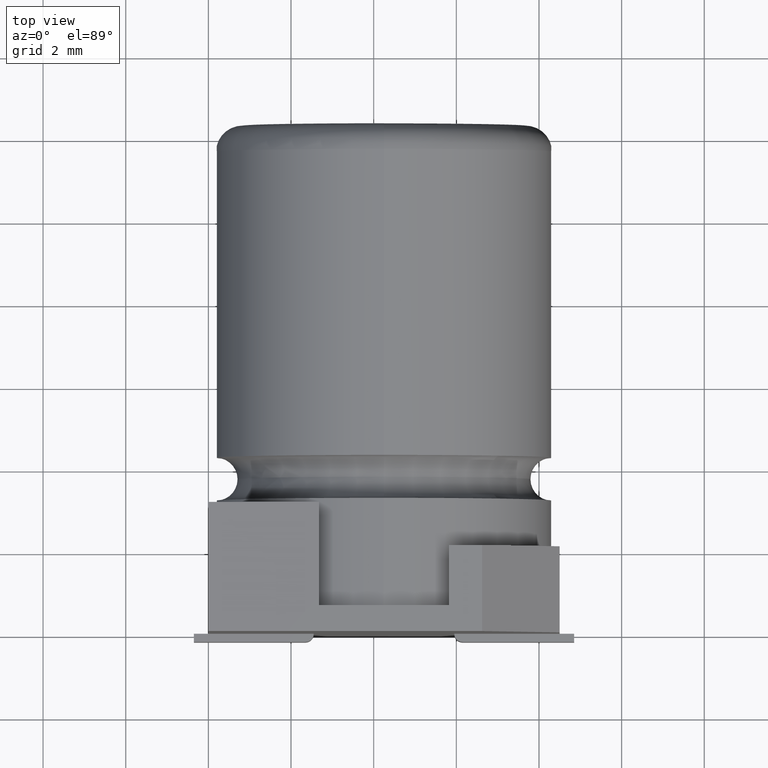
[diagram: clean part render]
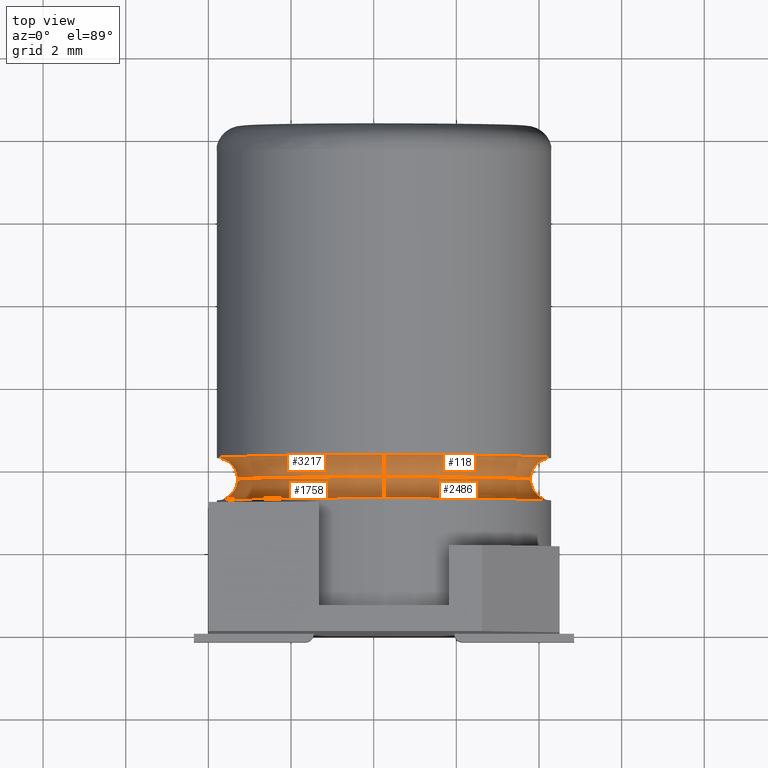
[diagram: same view with one multi-face feature highlighted, each face labeled with its STEP entity id]
A machine part, top view. The highlighted faces form ONE feature: a constant-radius fillet chain: 4 tangent blend faces with common blend radius 0.5187 mm. The faces share edges in the B-rep.
Their STEP definitions:
[1] entity #2486 (Torus):
#206 = AXIS2_PLACEMENT_3D ( 'NONE', #2729, #2178, #1648 ) ;
#469 = CARTESIAN_POINT ( 'NONE',  ( 4.250000000000000000, 3.228750000000000675, -8.312575000000000713 ) ) ;
#475 = CIRCLE ( 'NONE', #2372, 4.062574999999998937 ) ;
#484 = DIRECTION ( 'NONE',  ( 0.000000000000000000, 0.000000000000000000, -1.000000000000000000 ) ) ;
#539 = CARTESIAN_POINT ( 'NONE',  ( 4.250000000000000888, 3.747500000000000053, -0.7061750000000031058 ) ) ;
#631 = AXIS2_PLACEMENT_3D ( 'NONE', #1432, #2741, #3356 ) ;
#808 = AXIS2_PLACEMENT_3D ( 'NONE', #2545, #1240, #3126 ) ;
#934 = ORIENTED_EDGE ( 'NONE', *, *, #1233, .T. ) ;
#941 = ORIENTED_EDGE ( 'NONE', *, *, #1557, .F. ) ;
#963 = CARTESIAN_POINT ( 'NONE',  ( 4.250000000000000000, 3.747500000000000053, -7.793825000000000891 ) ) ;
#1031 = CARTESIAN_POINT ( 'NONE',  ( 4.250000000000000888, 3.228750000000000675, -0.1874250000000032279 ) ) ;
#1080 = TOROIDAL_SURFACE ( 'NONE', #206, 4.062574999999998937, 0.5187499999999999334 ) ;
#1232 = CARTESIAN_POINT ( 'NONE',  ( 4.250000000000000000, 3.228750000000000675, -4.250000000000001776 ) ) ;
#1233 = EDGE_CURVE ( 'NONE', #2688, #3080, #2653, .T. ) ;
#1237 = DIRECTION ( 'NONE',  ( 0.000000000000000000, 0.000000000000000000, 1.000000000000000000 ) ) ;
#1240 = DIRECTION ( 'NONE',  ( 1.000000000000000000, 0.000000000000000000, -1.224646799147353207E-16 ) ) ;
#1256 = VERTEX_POINT ( 'NONE', #1031 ) ;
#1298 = CIRCLE ( 'NONE', #808, 0.5187499999999999334 ) ;
#1432 = CARTESIAN_POINT ( 'NONE',  ( 4.250000000000000000, 3.747500000000000053, -4.250000000000001776 ) ) ;
#1502 = AXIS2_PLACEMENT_3D ( 'NONE', #2019, #2036, #1237 ) ;
#1536 = DIRECTION ( 'NONE',  ( -0.000000000000000000, -1.000000000000000000, -0.000000000000000000 ) ) ;
#1557 = EDGE_CURVE ( 'NONE', #2688, #1256, #475, .T. ) ;
#1648 = DIRECTION ( 'NONE',  ( 0.000000000000000000, 0.000000000000000000, -1.000000000000000000 ) ) ;
#1815 = EDGE_CURVE ( 'NONE', #3080, #3172, #1984, .T. ) ;
#1984 = CIRCLE ( 'NONE', #631, 3.543824999999998671 ) ;
#2019 = CARTESIAN_POINT ( 'NONE',  ( 4.250000000000000000, 3.747500000000000053, -8.312575000000000713 ) ) ;
#2036 = DIRECTION ( 'NONE',  ( -1.000000000000000000, 0.000000000000000000, 0.000000000000000000 ) ) ;
#2123 = ORIENTED_EDGE ( 'NONE', *, *, #3210, .F. ) ;
#2178 = DIRECTION ( 'NONE',  ( -0.000000000000000000, -1.000000000000000000, -0.000000000000000000 ) ) ;
#2372 = AXIS2_PLACEMENT_3D ( 'NONE', #1232, #1536, #484 ) ;
#2420 = ORIENTED_EDGE ( 'NONE', *, *, #1815, .T. ) ;
#2486 = ADVANCED_FACE ( 'NONE', ( #3103 ), #1080, .F. ) ;
#2545 = CARTESIAN_POINT ( 'NONE',  ( 4.250000000000000888, 3.747500000000000053, -0.1874250000000032279 ) ) ;
#2653 = CIRCLE ( 'NONE', #1502, 0.5187500000000001554 ) ;
#2688 = VERTEX_POINT ( 'NONE', #469 ) ;
#2729 = CARTESIAN_POINT ( 'NONE',  ( 4.250000000000000000, 3.747500000000000053, -4.250000000000001776 ) ) ;
#2741 = DIRECTION ( 'NONE',  ( -0.000000000000000000, -1.000000000000000000, -0.000000000000000000 ) ) ;
#3080 = VERTEX_POINT ( 'NONE', #963 ) ;
#3103 = FACE_OUTER_BOUND ( 'NONE', #3141, .T. ) ;
#3126 = DIRECTION ( 'NONE',  ( 0.000000000000000000, 0.000000000000000000, -1.000000000000000000 ) ) ;
#3141 = EDGE_LOOP ( 'NONE', ( #934, #2420, #2123, #941 ) ) ;
#3172 = VERTEX_POINT ( 'NONE', #539 ) ;
#3210 = EDGE_CURVE ( 'NONE', #1256, #3172, #1298, .T. ) ;
#3356 = DIRECTION ( 'NONE',  ( 0.000000000000000000, 0.000000000000000000, -1.000000000000000000 ) ) ;
[2] entity #118 (Torus):
#118 = ADVANCED_FACE ( 'NONE', ( #2147 ), #1644, .F. ) ;
#322 = DIRECTION ( 'NONE',  ( -0.000000000000000000, -1.000000000000000000, -0.000000000000000000 ) ) ;
#480 = CIRCLE ( 'NONE', #2612, 4.062574999999998937 ) ;
#539 = CARTESIAN_POINT ( 'NONE',  ( 4.250000000000000888, 3.747500000000000053, -0.7061750000000031058 ) ) ;
#631 = AXIS2_PLACEMENT_3D ( 'NONE', #1432, #2741, #3356 ) ;
#926 = DIRECTION ( 'NONE',  ( -1.000000000000000000, 0.000000000000000000, 0.000000000000000000 ) ) ;
#963 = CARTESIAN_POINT ( 'NONE',  ( 4.250000000000000000, 3.747500000000000053, -7.793825000000000891 ) ) ;
#1087 = EDGE_CURVE ( 'NONE', #3172, #2908, #1115, .T. ) ;
#1115 = CIRCLE ( 'NONE', #2421, 0.5187499999999999334 ) ;
#1238 = ORIENTED_EDGE ( 'NONE', *, *, #3115, .T. ) ;
#1354 = DIRECTION ( 'NONE',  ( 0.000000000000000000, 0.000000000000000000, -1.000000000000000000 ) ) ;
#1383 = ORIENTED_EDGE ( 'NONE', *, *, #1087, .F. ) ;
#1412 = CARTESIAN_POINT ( 'NONE',  ( 4.250000000000000888, 3.747500000000000053, -0.1874250000000032279 ) ) ;
#1429 = DIRECTION ( 'NONE',  ( 0.000000000000000000, 0.000000000000000000, -1.000000000000000000 ) ) ;
#1432 = CARTESIAN_POINT ( 'NONE',  ( 4.250000000000000000, 3.747500000000000053, -4.250000000000001776 ) ) ;
#1465 = DIRECTION ( 'NONE',  ( -0.000000000000000000, -1.000000000000000000, -0.000000000000000000 ) ) ;
#1554 = EDGE_LOOP ( 'NONE', ( #2879, #1238, #3128, #1383 ) ) ;
#1644 = TOROIDAL_SURFACE ( 'NONE', #3324, 4.062574999999998937, 0.5187499999999999334 ) ;
#1815 = EDGE_CURVE ( 'NONE', #3080, #3172, #1984, .T. ) ;
#1984 = CIRCLE ( 'NONE', #631, 3.543824999999998671 ) ;
#2011 = CARTESIAN_POINT ( 'NONE',  ( 4.250000000000000000, 4.266250000000000320, -4.250000000000001776 ) ) ;
#2113 = EDGE_CURVE ( 'NONE', #2422, #2908, #480, .T. ) ;
#2147 = FACE_OUTER_BOUND ( 'NONE', #1554, .T. ) ;
#2421 = AXIS2_PLACEMENT_3D ( 'NONE', #1412, #3241, #1429 ) ;
#2422 = VERTEX_POINT ( 'NONE', #3035 ) ;
#2612 = AXIS2_PLACEMENT_3D ( 'NONE', #2011, #1465, #3091 ) ;
#2625 = CIRCLE ( 'NONE', #3413, 0.5187500000000001554 ) ;
#2668 = CARTESIAN_POINT ( 'NONE',  ( 4.250000000000000888, 4.266250000000000320, -0.1874250000000032279 ) ) ;
#2669 = CARTESIAN_POINT ( 'NONE',  ( 4.250000000000000000, 3.747500000000000053, -4.250000000000001776 ) ) ;
#2741 = DIRECTION ( 'NONE',  ( -0.000000000000000000, -1.000000000000000000, -0.000000000000000000 ) ) ;
#2879 = ORIENTED_EDGE ( 'NONE', *, *, #1815, .F. ) ;
#2908 = VERTEX_POINT ( 'NONE', #2668 ) ;
#3019 = CARTESIAN_POINT ( 'NONE',  ( 4.250000000000000000, 3.747500000000000053, -8.312575000000000713 ) ) ;
#3035 = CARTESIAN_POINT ( 'NONE',  ( 4.250000000000000000, 4.266250000000000320, -8.312575000000000713 ) ) ;
#3080 = VERTEX_POINT ( 'NONE', #963 ) ;
#3091 = DIRECTION ( 'NONE',  ( 0.000000000000000000, 0.000000000000000000, -1.000000000000000000 ) ) ;
#3115 = EDGE_CURVE ( 'NONE', #3080, #2422, #2625, .T. ) ;
#3128 = ORIENTED_EDGE ( 'NONE', *, *, #2113, .T. ) ;
#3156 = DIRECTION ( 'NONE',  ( 0.000000000000000000, 0.000000000000000000, 1.000000000000000000 ) ) ;
#3172 = VERTEX_POINT ( 'NONE', #539 ) ;
#3241 = DIRECTION ( 'NONE',  ( 1.000000000000000000, 0.000000000000000000, -1.224646799147353207E-16 ) ) ;
#3324 = AXIS2_PLACEMENT_3D ( 'NONE', #2669, #322, #1354 ) ;
#3356 = DIRECTION ( 'NONE',  ( 0.000000000000000000, 0.000000000000000000, -1.000000000000000000 ) ) ;
#3413 = AXIS2_PLACEMENT_3D ( 'NONE', #3019, #926, #3156 ) ;
[3] entity #3217 (Torus):
#204 = EDGE_CURVE ( 'NONE', #2908, #2422, #2232, .T. ) ;
#226 = DIRECTION ( 'NONE',  ( 0.000000000000000000, 0.000000000000000000, -1.000000000000000000 ) ) ;
#227 = EDGE_CURVE ( 'NONE', #3172, #3080, #3251, .T. ) ;
#276 = AXIS2_PLACEMENT_3D ( 'NONE', #1108, #1370, #2134 ) ;
#326 = DIRECTION ( 'NONE',  ( 0.000000000000000000, 0.000000000000000000, -1.000000000000000000 ) ) ;
#539 = CARTESIAN_POINT ( 'NONE',  ( 4.250000000000000888, 3.747500000000000053, -0.7061750000000031058 ) ) ;
#711 = TOROIDAL_SURFACE ( 'NONE', #1940, 4.062574999999998937, 0.5187499999999999334 ) ;
#926 = DIRECTION ( 'NONE',  ( -1.000000000000000000, 0.000000000000000000, 0.000000000000000000 ) ) ;
#963 = CARTESIAN_POINT ( 'NONE',  ( 4.250000000000000000, 3.747500000000000053, -7.793825000000000891 ) ) ;
#1087 = EDGE_CURVE ( 'NONE', #3172, #2908, #1115, .T. ) ;
#1108 = CARTESIAN_POINT ( 'NONE',  ( 4.250000000000000000, 3.747500000000000053, -4.250000000000001776 ) ) ;
#1115 = CIRCLE ( 'NONE', #2421, 0.5187499999999999334 ) ;
#1143 = CARTESIAN_POINT ( 'NONE',  ( 4.250000000000000000, 4.266250000000000320, -4.250000000000001776 ) ) ;
#1305 = AXIS2_PLACEMENT_3D ( 'NONE', #1143, #2972, #326 ) ;
#1370 = DIRECTION ( 'NONE',  ( -0.000000000000000000, -1.000000000000000000, -0.000000000000000000 ) ) ;
#1412 = CARTESIAN_POINT ( 'NONE',  ( 4.250000000000000888, 3.747500000000000053, -0.1874250000000032279 ) ) ;
#1429 = DIRECTION ( 'NONE',  ( 0.000000000000000000, 0.000000000000000000, -1.000000000000000000 ) ) ;
#1441 = EDGE_LOOP ( 'NONE', ( #3248, #1903, #2980, #1981 ) ) ;
#1903 = ORIENTED_EDGE ( 'NONE', *, *, #1087, .T. ) ;
#1940 = AXIS2_PLACEMENT_3D ( 'NONE', #2007, #2273, #226 ) ;
#1981 = ORIENTED_EDGE ( 'NONE', *, *, #3115, .F. ) ;
#2007 = CARTESIAN_POINT ( 'NONE',  ( 4.250000000000000000, 3.747500000000000053, -4.250000000000001776 ) ) ;
#2074 = FACE_OUTER_BOUND ( 'NONE', #1441, .T. ) ;
#2134 = DIRECTION ( 'NONE',  ( 0.000000000000000000, 0.000000000000000000, -1.000000000000000000 ) ) ;
#2232 = CIRCLE ( 'NONE', #1305, 4.062574999999998937 ) ;
#2273 = DIRECTION ( 'NONE',  ( -0.000000000000000000, -1.000000000000000000, -0.000000000000000000 ) ) ;
#2421 = AXIS2_PLACEMENT_3D ( 'NONE', #1412, #3241, #1429 ) ;
#2422 = VERTEX_POINT ( 'NONE', #3035 ) ;
#2625 = CIRCLE ( 'NONE', #3413, 0.5187500000000001554 ) ;
#2668 = CARTESIAN_POINT ( 'NONE',  ( 4.250000000000000888, 4.266250000000000320, -0.1874250000000032279 ) ) ;
#2908 = VERTEX_POINT ( 'NONE', #2668 ) ;
#2972 = DIRECTION ( 'NONE',  ( -0.000000000000000000, -1.000000000000000000, -0.000000000000000000 ) ) ;
#2980 = ORIENTED_EDGE ( 'NONE', *, *, #204, .T. ) ;
#3019 = CARTESIAN_POINT ( 'NONE',  ( 4.250000000000000000, 3.747500000000000053, -8.312575000000000713 ) ) ;
#3035 = CARTESIAN_POINT ( 'NONE',  ( 4.250000000000000000, 4.266250000000000320, -8.312575000000000713 ) ) ;
#3080 = VERTEX_POINT ( 'NONE', #963 ) ;
#3115 = EDGE_CURVE ( 'NONE', #3080, #2422, #2625, .T. ) ;
#3156 = DIRECTION ( 'NONE',  ( 0.000000000000000000, 0.000000000000000000, 1.000000000000000000 ) ) ;
#3172 = VERTEX_POINT ( 'NONE', #539 ) ;
#3217 = ADVANCED_FACE ( 'NONE', ( #2074 ), #711, .F. ) ;
#3241 = DIRECTION ( 'NONE',  ( 1.000000000000000000, 0.000000000000000000, -1.224646799147353207E-16 ) ) ;
#3248 = ORIENTED_EDGE ( 'NONE', *, *, #227, .F. ) ;
#3251 = CIRCLE ( 'NONE', #276, 3.543824999999998671 ) ;
#3413 = AXIS2_PLACEMENT_3D ( 'NONE', #3019, #926, #3156 ) ;
[4] entity #1758 (Torus):
#45 = DIRECTION ( 'NONE',  ( 0.000000000000000000, 0.000000000000000000, -1.000000000000000000 ) ) ;
#200 = AXIS2_PLACEMENT_3D ( 'NONE', #2939, #1649, #45 ) ;
#227 = EDGE_CURVE ( 'NONE', #3172, #3080, #3251, .T. ) ;
#276 = AXIS2_PLACEMENT_3D ( 'NONE', #1108, #1370, #2134 ) ;
#315 = ORIENTED_EDGE ( 'NONE', *, *, #2636, .F. ) ;
#320 = AXIS2_PLACEMENT_3D ( 'NONE', #1030, #2873, #1795 ) ;
#469 = CARTESIAN_POINT ( 'NONE',  ( 4.250000000000000000, 3.228750000000000675, -8.312575000000000713 ) ) ;
#539 = CARTESIAN_POINT ( 'NONE',  ( 4.250000000000000888, 3.747500000000000053, -0.7061750000000031058 ) ) ;
#808 = AXIS2_PLACEMENT_3D ( 'NONE', #2545, #1240, #3126 ) ;
#845 = FACE_OUTER_BOUND ( 'NONE', #1938, .T. ) ;
#963 = CARTESIAN_POINT ( 'NONE',  ( 4.250000000000000000, 3.747500000000000053, -7.793825000000000891 ) ) ;
#1030 = CARTESIAN_POINT ( 'NONE',  ( 4.250000000000000000, 3.228750000000000675, -4.250000000000001776 ) ) ;
#1031 = CARTESIAN_POINT ( 'NONE',  ( 4.250000000000000888, 3.228750000000000675, -0.1874250000000032279 ) ) ;
#1108 = CARTESIAN_POINT ( 'NONE',  ( 4.250000000000000000, 3.747500000000000053, -4.250000000000001776 ) ) ;
#1233 = EDGE_CURVE ( 'NONE', #2688, #3080, #2653, .T. ) ;
#1237 = DIRECTION ( 'NONE',  ( 0.000000000000000000, 0.000000000000000000, 1.000000000000000000 ) ) ;
#1240 = DIRECTION ( 'NONE',  ( 1.000000000000000000, 0.000000000000000000, -1.224646799147353207E-16 ) ) ;
#1256 = VERTEX_POINT ( 'NONE', #1031 ) ;
#1298 = CIRCLE ( 'NONE', #808, 0.5187499999999999334 ) ;
#1370 = DIRECTION ( 'NONE',  ( -0.000000000000000000, -1.000000000000000000, -0.000000000000000000 ) ) ;
#1502 = AXIS2_PLACEMENT_3D ( 'NONE', #2019, #2036, #1237 ) ;
#1649 = DIRECTION ( 'NONE',  ( -0.000000000000000000, -1.000000000000000000, -0.000000000000000000 ) ) ;
#1758 = ADVANCED_FACE ( 'NONE', ( #845 ), #3169, .F. ) ;
#1795 = DIRECTION ( 'NONE',  ( 0.000000000000000000, 0.000000000000000000, -1.000000000000000000 ) ) ;
#1938 = EDGE_LOOP ( 'NONE', ( #2196, #2762, #3258, #315 ) ) ;
#2019 = CARTESIAN_POINT ( 'NONE',  ( 4.250000000000000000, 3.747500000000000053, -8.312575000000000713 ) ) ;
#2036 = DIRECTION ( 'NONE',  ( -1.000000000000000000, 0.000000000000000000, 0.000000000000000000 ) ) ;
#2134 = DIRECTION ( 'NONE',  ( 0.000000000000000000, 0.000000000000000000, -1.000000000000000000 ) ) ;
#2196 = ORIENTED_EDGE ( 'NONE', *, *, #3210, .T. ) ;
#2545 = CARTESIAN_POINT ( 'NONE',  ( 4.250000000000000888, 3.747500000000000053, -0.1874250000000032279 ) ) ;
#2636 = EDGE_CURVE ( 'NONE', #1256, #2688, #3237, .T. ) ;
#2653 = CIRCLE ( 'NONE', #1502, 0.5187500000000001554 ) ;
#2688 = VERTEX_POINT ( 'NONE', #469 ) ;
#2762 = ORIENTED_EDGE ( 'NONE', *, *, #227, .T. ) ;
#2873 = DIRECTION ( 'NONE',  ( -0.000000000000000000, -1.000000000000000000, -0.000000000000000000 ) ) ;
#2939 = CARTESIAN_POINT ( 'NONE',  ( 4.250000000000000000, 3.747500000000000053, -4.250000000000001776 ) ) ;
#3080 = VERTEX_POINT ( 'NONE', #963 ) ;
#3126 = DIRECTION ( 'NONE',  ( 0.000000000000000000, 0.000000000000000000, -1.000000000000000000 ) ) ;
#3169 = TOROIDAL_SURFACE ( 'NONE', #200, 4.062574999999998937, 0.5187499999999999334 ) ;
#3172 = VERTEX_POINT ( 'NONE', #539 ) ;
#3210 = EDGE_CURVE ( 'NONE', #1256, #3172, #1298, .T. ) ;
#3237 = CIRCLE ( 'NONE', #320, 4.062574999999998937 ) ;
#3251 = CIRCLE ( 'NONE', #276, 3.543824999999998671 ) ;
#3258 = ORIENTED_EDGE ( 'NONE', *, *, #1233, .F. ) ;